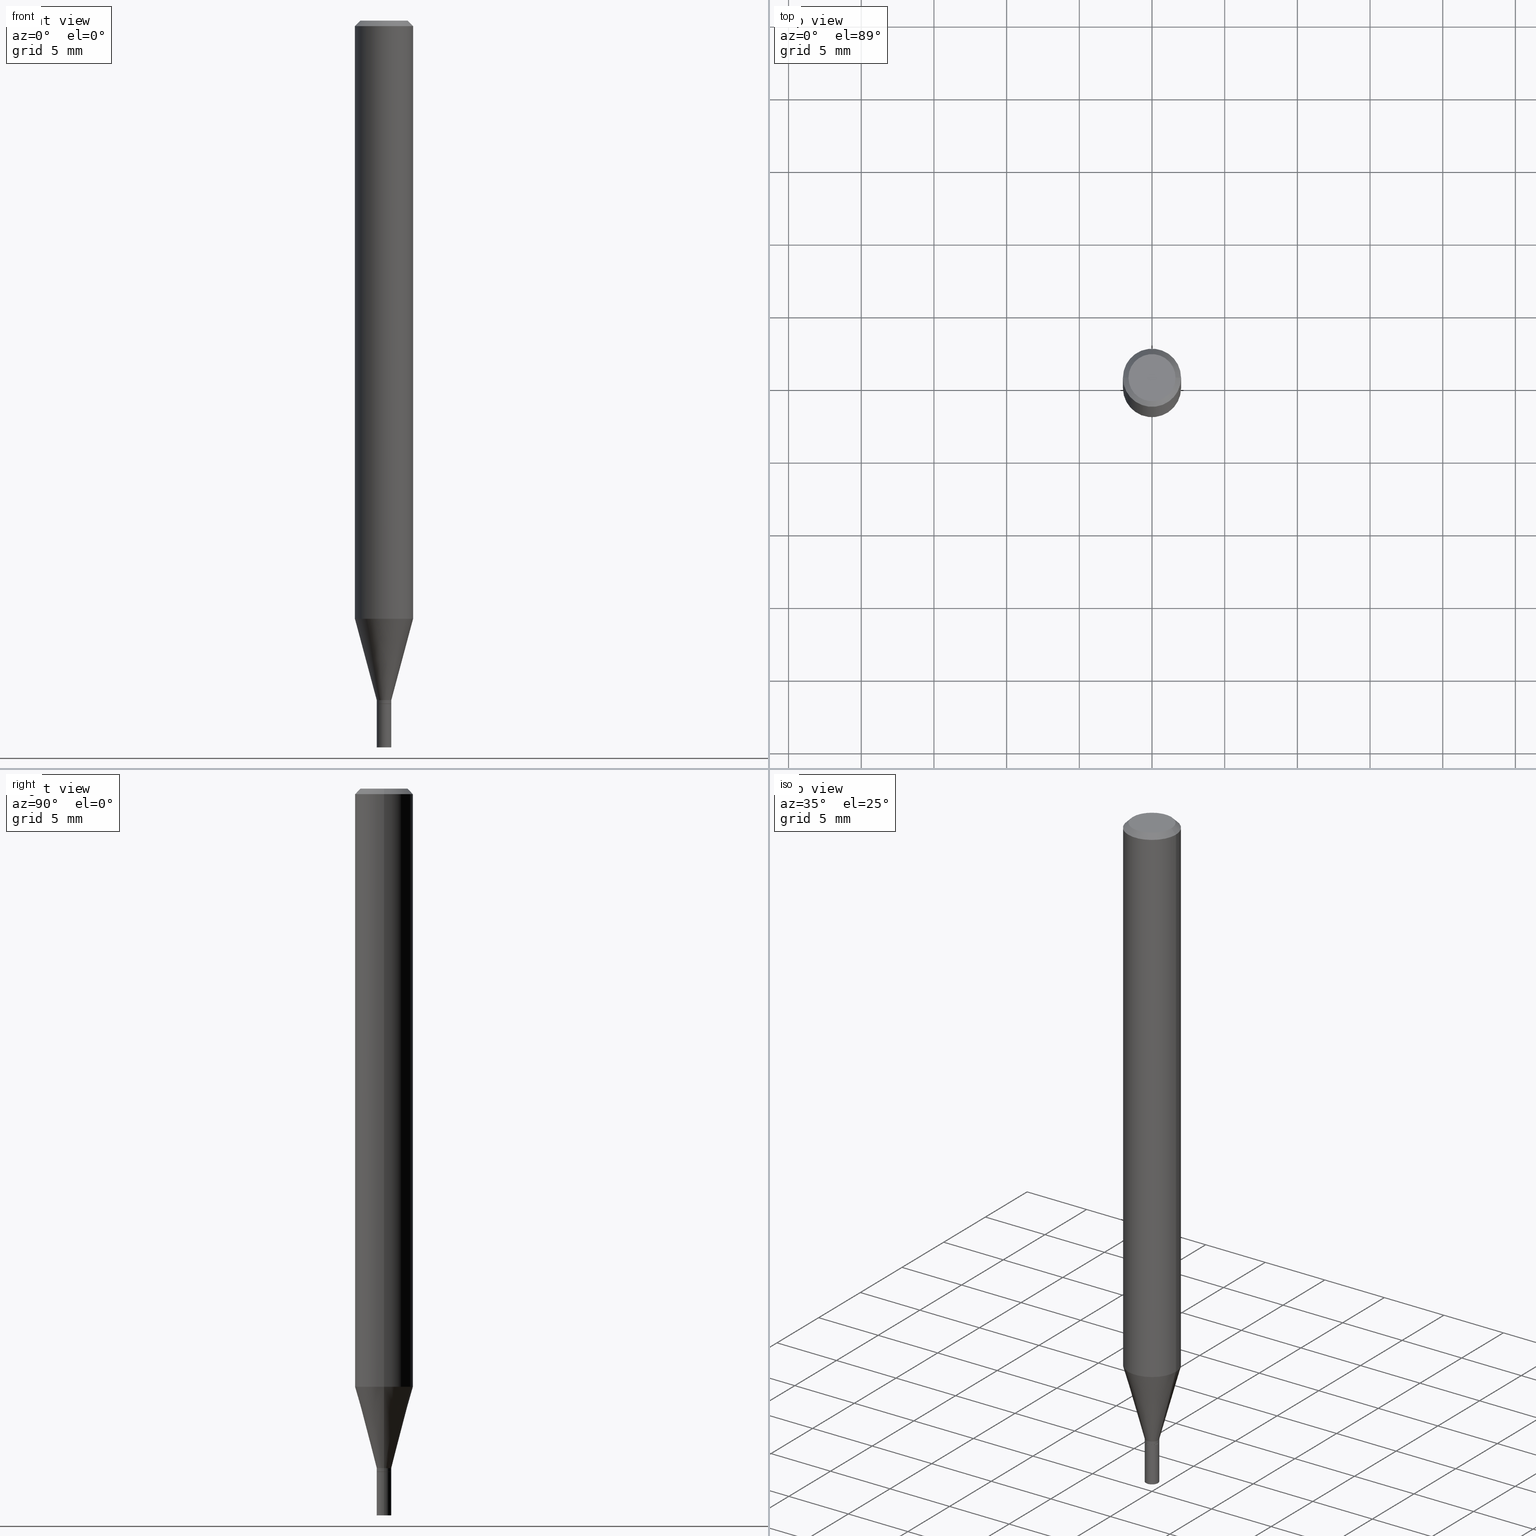
[diagram: canonical four-view strip — front | top / right | iso, engineering-drawing reading convention]
A machine part, canonical four-view strip (front | top / right | iso — engineering-drawing reading convention). The complete STEP part file that produces these views, byte-faithful:
ISO-10303-21;
HEADER;
FILE_DESCRIPTION (( 'STEP AP203' ),
    '1' );
FILE_NAME ('01883.STEP',
    '2024-03-20T02:24:21',
    ( '' ),
    ( '' ),
    'SwSTEP 2.0',
    'SolidWorks 2023',
    '' );
FILE_SCHEMA (( 'CONFIG_CONTROL_DESIGN' ));
ENDSEC;

DATA;
#1 = EDGE_LOOP ( 'NONE', ( #212, #92, #466, #40 ) ) ;
#2 = CALENDAR_DATE ( 2024, 19, 3 ) ;
#3 = APPLICATION_CONTEXT ( 'configuration controlled 3d designs of mechanical parts and assemblies' ) ;
#4 = VERTEX_POINT ( 'NONE', #363 ) ;
#5 = EDGE_CURVE ( 'NONE', #54, #67, #35, .T. ) ;
#6 = VECTOR ( 'NONE', #238, 39.37007874015748143 ) ;
#7 = VERTEX_POINT ( 'NONE', #188 ) ;
#8 = EDGE_CURVE ( 'NONE', #336, #284, #110, .T. ) ;
#9 = CARTESIAN_POINT ( 'NONE',  ( 0.01969999999999999876, -7.010545380263151710E-15, -1.968500000000000139 ) ) ;
#10 = FACE_OUTER_BOUND ( 'NONE', #365, .T. ) ;
#11 = LINE ( 'NONE', #449, #204 ) ;
#12 = EDGE_CURVE ( 'NONE', #297, #284, #59, .T. ) ;
#13 = CARTESIAN_POINT ( 'NONE',  ( 3.668203209277705088E-31, -5.237222008264718399E-17, -0.01499999999999999944 ) ) ;
#14 = CIRCLE ( 'NONE', #313, 0.01969999999999964835 ) ;
#15 = PRODUCT_DEFINITION_SHAPE ( 'NONE', 'NONE',  #302 ) ;
#16 = DIRECTION ( 'NONE',  ( -1.000000000000000000, 6.982962677686265922E-15, -4.876176775795935793E-29 ) ) ;
#17 = DIRECTION ( 'NONE',  ( -1.000000000000000000, 6.982962677686265922E-15, 0.000000000000000000 ) ) ;
#18 = APPROVAL ( #182, 'UNSPECIFIED' ) ;
#19 = LINE ( 'NONE', #160, #197 ) ;
#20 = PLANE ( 'NONE',  #305 ) ;
#21 = ADVANCED_FACE ( 'NONE', ( #270 ), #268, .T. ) ;
#22 = VECTOR ( 'NONE', #409, 39.37007874015748143 ) ;
#23 = CARTESIAN_POINT ( 'NONE',  ( 4.525095478964976833E-29, -6.460637069395356787E-15, -1.850400000000000045 ) ) ;
#24 = CARTESIAN_POINT ( 'NONE',  ( 4.813905344975441835E-29, -6.872981015512731707E-15, -1.968500000000000139 ) ) ;
#25 = CC_DESIGN_PERSON_AND_ORGANIZATION_ASSIGNMENT ( #432, #400, ( #302 ) ) ;
#26 = ORIENTED_EDGE ( 'NONE', *, *, #430, .T. ) ;
#27 = AXIS2_PLACEMENT_3D ( 'NONE', #303, #232, #442 ) ;
#28 = APPROVAL_ROLE ( '' ) ;
#29 = LINE ( 'NONE', #352, #6 ) ;
#30 = VERTEX_POINT ( 'NONE', #9 ) ;
#31 = DIRECTION ( 'NONE',  ( -2.445468806185136597E-29, 3.491481338843145583E-15, 1.000000000000000000 ) ) ;
#32 = EDGE_LOOP ( 'NONE', ( #216, #87, #259, #215 ) ) ;
#33 = CARTESIAN_POINT ( 'NONE',  ( -1.671175420108757483E-44, 2.385995592536438542E-30, 6.833762981895258137E-16 ) ) ;
#34 = CIRCLE ( 'NONE', #339, 0.06375000000000000111 ) ;
#35 = LINE ( 'NONE', #143, #233 ) ;
#36 = DATE_AND_TIME ( #193, #100 ) ;
#37 = CC_DESIGN_PERSON_AND_ORGANIZATION_ASSIGNMENT ( #286, #64, ( #396 ) ) ;
#38 = VERTEX_POINT ( 'NONE', #227 ) ;
#39 =( NAMED_UNIT ( * ) PLANE_ANGLE_UNIT ( ) SI_UNIT ( $, .RADIAN. ) );
#40 = ORIENTED_EDGE ( 'NONE', *, *, #163, .F. ) ;
#41 = ADVANCED_FACE ( 'NONE', ( #309 ), #341, .T. ) ;
#42 = AXIS2_PLACEMENT_3D ( 'NONE', #195, #157, #346 ) ;
#43 = AXIS2_PLACEMENT_3D ( 'NONE', #13, #377, #17 ) ;
#44 = DIRECTION ( 'NONE',  ( -2.445468806185136597E-29, 3.491481338843145583E-15, 1.000000000000000000 ) ) ;
#45 = CC_DESIGN_DATE_AND_TIME_ASSIGNMENT ( #355, #383, ( #315 ) ) ;
#46 = CARTESIAN_POINT ( 'NONE',  ( -0.01969999999999964835, -6.318914409781198341E-15, -1.849900000000000100 ) ) ;
#47 = CARTESIAN_POINT ( 'NONE',  ( 0.01969999999999999876, -6.598201434145776001E-15, -1.850400000000000045 ) ) ;
#48 = DIRECTION ( 'NONE',  ( 1.000000000000000000, -6.982962677686261977E-15, 0.000000000000000000 ) ) ;
#49 = DIRECTION ( 'NONE',  ( 1.000000000000000000, -6.982962677686278543E-15, 0.000000000000000000 ) ) ;
#50 = FACE_OUTER_BOUND ( 'NONE', #330, .T. ) ;
#51 = EDGE_CURVE ( 'NONE', #321, #284, #199, .T. ) ;
#52 = DIRECTION ( 'NONE',  ( 2.438088387897960049E-29, -3.491481338843145188E-15, -1.000000000000000000 ) ) ;
#53 = DIRECTION ( 'NONE',  ( -2.445468806185136597E-29, 3.491481338843145583E-15, 1.000000000000000000 ) ) ;
#54 = VERTEX_POINT ( 'NONE', #448 ) ;
#55 = CONICAL_SURFACE ( 'NONE', #191, 0.07875000000000000056, 0.7853981633974256304 ) ;
#56 = PERSON_AND_ORGANIZATION ( #404, #61 ) ;
#57 = APPROVAL ( #190, 'UNSPECIFIED' ) ;
#58 = EDGE_LOOP ( 'NONE', ( #98, #333, #141, #458 ) ) ;
#59 = CIRCLE ( 'NONE', #337, 0.07875000000000000056 ) ;
#60 = AXIS2_PLACEMENT_3D ( 'NONE', #205, #177, #327 ) ;
#61 = ORGANIZATION ( 'UNSPECIFIED', 'UNSPECIFIED', '' ) ;
#62 = ORIENTED_EDGE ( 'NONE', *, *, #8, .F. ) ;
#63 = LENGTH_MEASURE_WITH_UNIT ( LENGTH_MEASURE( 0.02539999999999999897 ), #99 );
#64 = PERSON_AND_ORGANIZATION_ROLE ( 'design_supplier' ) ;
#65 = ORIENTED_EDGE ( 'NONE', *, *, #353, .T. ) ;
#66 = PERSON_AND_ORGANIZATION_ROLE ( 'design_owner' ) ;
#67 = VERTEX_POINT ( 'NONE', #46 ) ;
#68 = CARTESIAN_POINT ( 'NONE',  ( 3.668203209277705088E-31, -5.237222008264718399E-17, -0.01499999999999999944 ) ) ;
#69 = LOCAL_TIME ( 22, 24, 21.00000000000000000, #142 ) ;
#70 = ORIENTED_EDGE ( 'NONE', *, *, #424, .F. ) ;
#71 = CARTESIAN_POINT ( 'NONE',  ( 0.01969999999999991896, -6.563635768891228653E-15, -1.840500000000000025 ) ) ;
#72 = ADVANCED_FACE ( 'NONE', ( #119 ), #311, .T. ) ;
#73 = ORIENTED_EDGE ( 'NONE', *, *, #427, .F. ) ;
#74 = DATE_TIME_ROLE ( 'creation_date' ) ;
#75 = CARTESIAN_POINT ( 'NONE',  ( 0.000000000000000000, 0.000000000000000000, 0.000000000000000000 ) ) ;
#76 = CALENDAR_DATE ( 2024, 19, 3 ) ;
#77 = DIRECTION ( 'NONE',  ( 1.000000000000000000, -6.982962677686252511E-15, 0.000000000000000000 ) ) ;
#78 = DIRECTION ( 'NONE',  ( -2.445468806185136597E-29, 3.491481338843145583E-15, 1.000000000000000000 ) ) ;
#79 = LINE ( 'NONE', #230, #405 ) ;
#80 = DIRECTION ( 'NONE',  ( 1.000000000000000000, -6.982962677686258033E-15, 0.000000000000000000 ) ) ;
#81 = VECTOR ( 'NONE', #218, 39.37007874015748143 ) ;
#82 = DIRECTION ( 'NONE',  ( 1.000000000000000000, -6.982962677686265922E-15, 4.876176775795935232E-29 ) ) ;
#83 = CONICAL_SURFACE ( 'NONE', #343, 0.01919999999999999832, 0.7853981633969253640 ) ;
#84 = AXIS2_PLACEMENT_3D ( 'NONE', #33, #463, #139 ) ;
#85 = LINE ( 'NONE', #447, #90 ) ;
#86 = CARTESIAN_POINT ( 'NONE',  ( 0.000000000000000000, 0.000000000000000000, 0.000000000000000000 ) ) ;
#87 = ORIENTED_EDGE ( 'NONE', *, *, #394, .T. ) ;
#88 = CYLINDRICAL_SURFACE ( 'NONE', #210, 0.07875000000000000056 ) ;
#89 = CLOSED_SHELL ( 'NONE', ( #41, #121, #174, #384, #235, #144, #358, #107, #376, #159, #221, #21 ) ) ;
#90 = VECTOR ( 'NONE', #263, 39.37007874015748143 ) ;
#91 = LOCAL_TIME ( 22, 24, 21.00000000000000000, #262 ) ;
#92 = ORIENTED_EDGE ( 'NONE', *, *, #269, .T. ) ;
#93 = DIMENSIONAL_EXPONENTS ( 1.000000000000000000, 0.000000000000000000, 0.000000000000000000, 0.000000000000000000, 0.000000000000000000, 0.000000000000000000, 0.000000000000000000 ) ;
#94 = ORIENTED_EDGE ( 'NONE', *, *, #12, .F. ) ;
#95 = FACE_OUTER_BOUND ( 'NONE', #254, .T. ) ;
#96 = CARTESIAN_POINT ( 'NONE',  ( 4.523872744561884592E-29, -6.458891328725935284E-15, -1.849900000000000100 ) ) ;
#97 = PERSON_AND_ORGANIZATION ( #404, #61 ) ;
#98 = ORIENTED_EDGE ( 'NONE', *, *, #136, .T. ) ;
#99 =( LENGTH_UNIT ( ) NAMED_UNIT ( * ) SI_UNIT ( $, .METRE. ) );
#100 = LOCAL_TIME ( 22, 24, 21.00000000000000000, #172 ) ;
#101 = ORIENTED_EDGE ( 'NONE', *, *, #427, .T. ) ;
#102 = ORIENTED_EDGE ( 'NONE', *, *, #350, .F. ) ;
#103 = EDGE_CURVE ( 'NONE', #173, #243, #164, .T. ) ;
#104 = DIRECTION ( 'NONE',  ( 0.000000000000000000, 0.000000000000000000, 1.000000000000000000 ) ) ;
#105 = ORIENTED_EDGE ( 'NONE', *, *, #455, .F. ) ;
#106 = COORDINATED_UNIVERSAL_TIME_OFFSET ( 5, 0, .BEHIND. ) ;
#107 = ADVANCED_FACE ( 'NONE', ( #50 ), #55, .T. ) ;
#108 = AXIS2_PLACEMENT_3D ( 'NONE', #279, #460, #316 ) ;
#109 = ORIENTED_EDGE ( 'NONE', *, *, #310, .F. ) ;
#110 = LINE ( 'NONE', #294, #81 ) ;
#111 = APPROVAL_ROLE ( '' ) ;
#112 = DIRECTION ( 'NONE',  ( 1.000000000000000000, -6.982962677686255667E-15, 0.000000000000000000 ) ) ;
#113 = CARTESIAN_POINT ( 'NONE',  ( -0.06375000000000000111, 4.713499807438241074E-16, 6.833762981895226583E-16 ) ) ;
#114 = VECTOR ( 'NONE', #201, 39.37007874015748143 ) ;
#115 = DIRECTION ( 'NONE',  ( -2.438088387897960049E-29, 3.491481338843145188E-15, 1.000000000000000000 ) ) ;
#116 = PRODUCT ( '01883', '01883', '', ( #255 ) ) ;
#117 = CARTESIAN_POINT ( 'NONE',  ( 0.07875000000000000056, -6.022805309504406221E-16, -0.01499999999999999944 ) ) ;
#118 = DIRECTION ( 'NONE',  ( 1.000000000000000000, -6.982962677686267499E-15, 4.876176775795935793E-29 ) ) ;
#119 = FACE_OUTER_BOUND ( 'NONE', #1, .T. ) ;
#120 = DIRECTION ( 'NONE',  ( -0.7071067811865314745, 2.468850131082088639E-15, -0.7071067811865635599 ) ) ;
#121 = ADVANCED_FACE ( 'NONE', ( #446 ), #138, .T. ) ;
#122 = FACE_OUTER_BOUND ( 'NONE', #181, .T. ) ;
#123 = AXIS2_PLACEMENT_3D ( 'NONE', #266, #158, #49 ) ;
#124 = AXIS2_PLACEMENT_3D ( 'NONE', #220, #285, #388 ) ;
#125 = DIRECTION ( 'NONE',  ( 1.000000000000000000, -6.982962677686255667E-15, 0.000000000000000000 ) ) ;
#126 = ADVANCED_FACE ( 'NONE', ( #122 ), #20, .F. ) ;
#127 = VERTEX_POINT ( 'NONE', #155 ) ;
#128 = DIRECTION ( 'NONE',  ( 0.7071067811861776464, -2.468850131078383359E-15, 0.7071067811869171660 ) ) ;
#129 = EDGE_CURVE ( 'NONE', #30, #127, #225, .T. ) ;
#130 = ORIENTED_EDGE ( 'NONE', *, *, #295, .T. ) ;
#131 = AXIS2_PLACEMENT_3D ( 'NONE', #443, #115, #410 ) ;
#132 = PERSON_AND_ORGANIZATION_ROLE ( 'classification_officer' ) ;
#133 = ORIENTED_EDGE ( 'NONE', *, *, #163, .T. ) ;
#134 = ORIENTED_EDGE ( 'NONE', *, *, #136, .F. ) ;
#135 = DIRECTION ( 'NONE',  ( 1.000000000000000000, -6.982962677686265922E-15, 4.876176775795935232E-29 ) ) ;
#136 = EDGE_CURVE ( 'NONE', #436, #7, #386, .T. ) ;
#137 = VERTEX_POINT ( 'NONE', #113 ) ;
#138 = CONICAL_SURFACE ( 'NONE', #444, 0.01919999999999999832, 0.7853981633969253640 ) ;
#139 = DIRECTION ( 'NONE',  ( 1.000000000000000000, -6.982962677686265922E-15, 4.947888571036530338E-29 ) ) ;
#140 =( GEOMETRIC_REPRESENTATION_CONTEXT ( 3 ) GLOBAL_UNCERTAINTY_ASSIGNED_CONTEXT ( ( #219 ) ) GLOBAL_UNIT_ASSIGNED_CONTEXT ( ( #299, #39, #253 ) ) REPRESENTATION_CONTEXT ( 'NONE', 'WORKASPACE' ) );
#141 = ORIENTED_EDGE ( 'NONE', *, *, #295, .F. ) ;
#142 = COORDINATED_UNIVERSAL_TIME_OFFSET ( 5, 0, .BEHIND. ) ;
#143 = CARTESIAN_POINT ( 'NONE',  ( -0.01919999999999999832, -6.324212864129418377E-15, -1.850400000000000267 ) ) ;
#144 = ADVANCED_FACE ( 'NONE', ( #151 ), #320, .T. ) ;
#145 = DATE_AND_TIME ( #2, #273 ) ;
#146 = ORIENTED_EDGE ( 'NONE', *, *, #368, .T. ) ;
#147 = DIRECTION ( 'NONE',  ( 1.000000000000000000, -6.982962677686265922E-15, 4.947888571036530338E-29 ) ) ;
#148 = CC_DESIGN_PERSON_AND_ORGANIZATION_ASSIGNMENT ( #97, #211, ( #396 ) ) ;
#149 = VECTOR ( 'NONE', #128, 39.37007874015748854 ) ;
#150 = ORIENTED_EDGE ( 'NONE', *, *, #416, .F. ) ;
#151 = FACE_OUTER_BOUND ( 'NONE', #32, .T. ) ;
#152 = CARTESIAN_POINT ( 'NONE',  ( 0.07875000000000000056, -5.499083108677934443E-16, 3.839989210939299016E-30 ) ) ;
#153 = DIRECTION ( 'NONE',  ( -2.445468806185136877E-29, 3.491481338843145188E-15, 1.000000000000000000 ) ) ;
#154 = CIRCLE ( 'NONE', #265, 0.07875000000000000056 ) ;
#155 = CARTESIAN_POINT ( 'NONE',  ( -0.01969999999999999876, -6.526832123509304544E-15, -1.968500000000000139 ) ) ;
#156 = APPROVAL ( #357, 'UNSPECIFIED' ) ;
#157 = DIRECTION ( 'NONE',  ( -2.445468806185136597E-29, 3.491481338843145583E-15, 1.000000000000000000 ) ) ;
#158 = DIRECTION ( 'NONE',  ( -2.445468806185136597E-29, 3.491481338843145583E-15, 1.000000000000000000 ) ) ;
#159 = ADVANCED_FACE ( 'NONE', ( #10 ), #304, .F. ) ;
#160 = CARTESIAN_POINT ( 'NONE',  ( -0.07875000000000000056, 4.975360907851462665E-16, -0.01499999999999999944 ) ) ;
#161 = DIRECTION ( 'NONE',  ( 1.000000000000000000, -6.982962677686267499E-15, 4.876176775795935793E-29 ) ) ;
#162 = ADVANCED_BREP_SHAPE_REPRESENTATION ( '01883', ( #167, #332, #289 ), #140 ) ;
#163 = EDGE_CURVE ( 'NONE', #30, #173, #79, .T. ) ;
#164 = CIRCLE ( 'NONE', #123, 0.01969999999999999876 ) ;
#165 = APPROVAL_PERSON_ORGANIZATION ( #223, #57, #111 ) ;
#166 = DIRECTION ( 'NONE',  ( 1.000000000000000000, -6.982962677686265922E-15, 4.876176775795935232E-29 ) ) ;
#167 = MANIFOLD_SOLID_BREP ( 'Body-Move/Copy2[1]', #433 ) ;
#168 = CYLINDRICAL_SURFACE ( 'NONE', #170, 0.07875000000000000056 ) ;
#169 = ORIENTED_EDGE ( 'NONE', *, *, #387, .F. ) ;
#170 = AXIS2_PLACEMENT_3D ( 'NONE', #86, #277, #166 ) ;
#171 = ORIENTED_EDGE ( 'NONE', *, *, #213, .F. ) ;
#172 = COORDINATED_UNIVERSAL_TIME_OFFSET ( 5, 0, .BEHIND. ) ;
#173 = VERTEX_POINT ( 'NONE', #47 ) ;
#174 = ADVANCED_FACE ( 'NONE', ( #342 ), #435, .T. ) ;
#175 = DIRECTION ( 'NONE',  ( 1.000000000000000000, -6.982962677686265922E-15, 4.876176775795935232E-29 ) ) ;
#176 = ORIENTED_EDGE ( 'NONE', *, *, #189, .T. ) ;
#177 = DIRECTION ( 'NONE',  ( -2.445468806185136597E-29, 3.491481338843145583E-15, 1.000000000000000000 ) ) ;
#178 = ORIENTED_EDGE ( 'NONE', *, *, #424, .T. ) ;
#179 = AXIS2_PLACEMENT_3D ( 'NONE', #274, #208, #135 ) ;
#180 = CARTESIAN_POINT ( 'NONE',  ( -0.01969999999999978366, 1.399769189447381994E-16, -9.690302127802057404E-31 ) ) ;
#181 = EDGE_LOOP ( 'NONE', ( #390, #349 ) ) ;
#182 = APPROVAL_STATUS ( 'not_yet_approved' ) ;
#183 = APPROVAL_DATE_TIME ( #36, #156 ) ;
#184 = CARTESIAN_POINT ( 'NONE',  ( -0.07875000000000000056, 5.595524044110789003E-16, -3.873661383575737792E-30 ) ) ;
#185 = EDGE_LOOP ( 'NONE', ( #178, #324, #171, #169 ) ) ;
#186 = EDGE_CURVE ( 'NONE', #4, #297, #245, .T. ) ;
#187 = DIRECTION ( 'NONE',  ( 1.000000000000000000, 0.000000000000000000, 0.000000000000000000 ) ) ;
#188 = CARTESIAN_POINT ( 'NONE',  ( -0.01969999999999991896, -5.691584603187028865E-15, -1.840500000000000025 ) ) ;
#189 = EDGE_CURVE ( 'NONE', #67, #7, #317, .T. ) ;
#190 = APPROVAL_STATUS ( 'not_yet_approved' ) ;
#191 = AXIS2_PLACEMENT_3D ( 'NONE', #451, #236, #308 ) ;
#192 = DIRECTION ( 'NONE',  ( -2.445468806185136597E-29, 3.491481338843145583E-15, 1.000000000000000000 ) ) ;
#193 = CALENDAR_DATE ( 2024, 19, 3 ) ;
#194 = CARTESIAN_POINT ( 'NONE',  ( 4.500885337783744072E-29, -6.426071404140809439E-15, -1.840500000000000025 ) ) ;
#195 = CARTESIAN_POINT ( 'NONE',  ( 4.500885337783744072E-29, -6.426071404140809439E-15, -1.840500000000000025 ) ) ;
#196 = CARTESIAN_POINT ( 'NONE',  ( -0.07875000000000000056, -2.294947268424778136E-15, -0.01499999999999999944 ) ) ;
#197 = VECTOR ( 'NONE', #120, 39.37007874015748143 ) ;
#198 = CIRCLE ( 'NONE', #84, 0.06375000000000000111 ) ;
#199 = LINE ( 'NONE', #152, #114 ) ;
#200 = CARTESIAN_POINT ( 'NONE',  ( 4.525095478964977394E-29, -6.460637069395357576E-15, -1.850400000000000267 ) ) ;
#201 = DIRECTION ( 'NONE',  ( -2.445468806185136877E-29, 3.491481338843145188E-15, 1.000000000000000000 ) ) ;
#202 = DIRECTION ( 'NONE',  ( 0.2588190451025214611, 1.565188264969620982E-15, 0.9659258262890679791 ) ) ;
#203 = ORIENTED_EDGE ( 'NONE', *, *, #103, .T. ) ;
#204 = VECTOR ( 'NONE', #153, 39.37007874015748143 ) ;
#205 = CARTESIAN_POINT ( 'NONE',  ( 4.500885337783744072E-29, -6.426071404140809439E-15, -1.840500000000000025 ) ) ;
#206 = ORIENTED_EDGE ( 'NONE', *, *, #189, .F. ) ;
#207 = ADVANCED_FACE ( 'NONE', ( #275 ), #231, .F. ) ;
#208 = DIRECTION ( 'NONE',  ( -2.445468806185136597E-29, 3.491481338843145583E-15, 1.000000000000000000 ) ) ;
#209 = PERSON_AND_ORGANIZATION ( #404, #61 ) ;
#210 = AXIS2_PLACEMENT_3D ( 'NONE', #382, #248, #175 ) ;
#211 = PERSON_AND_ORGANIZATION_ROLE ( 'creator' ) ;
#212 = ORIENTED_EDGE ( 'NONE', *, *, #129, .T. ) ;
#213 = EDGE_CURVE ( 'NONE', #38, #67, #362, .T. ) ;
#214 = CARTESIAN_POINT ( 'NONE',  ( 0.000000000000000000, 0.000000000000000000, 0.000000000000000000 ) ) ;
#215 = ORIENTED_EDGE ( 'NONE', *, *, #368, .F. ) ;
#216 = ORIENTED_EDGE ( 'NONE', *, *, #252, .F. ) ;
#217 = AXIS2_PLACEMENT_3D ( 'NONE', #24, #239, #322 ) ;
#218 = DIRECTION ( 'NONE',  ( 0.7071067811865314745, -7.319954787623202403E-15, -0.7071067811865635599 ) ) ;
#219 = UNCERTAINTY_MEASURE_WITH_UNIT (LENGTH_MEASURE( 1.000000000000000082E-05 ), #299, 'distance_accuracy_value', 'NONE');
#220 = CARTESIAN_POINT ( 'NONE',  ( 4.525095478964977394E-29, -6.460637069395357576E-15, -1.850400000000000267 ) ) ;
#221 = ADVANCED_FACE ( 'NONE', ( #229 ), #83, .T. ) ;
#222 = ORIENTED_EDGE ( 'NONE', *, *, #8, .T. ) ;
#223 = PERSON_AND_ORGANIZATION ( #404, #61 ) ;
#224 = DIRECTION ( 'NONE',  ( -2.438088387897960049E-29, 3.491481338843145188E-15, 1.000000000000000000 ) ) ;
#225 = CIRCLE ( 'NONE', #287, 0.01969999999999999876 ) ;
#226 = CARTESIAN_POINT ( 'NONE',  ( 4.523872744561884592E-29, -6.458891328725935284E-15, -1.849900000000000100 ) ) ;
#227 = CARTESIAN_POINT ( 'NONE',  ( 0.01969999999999964835, -6.596455693476352131E-15, -1.849900000000000100 ) ) ;
#228 = CC_DESIGN_PERSON_AND_ORGANIZATION_ASSIGNMENT ( #209, #132, ( #315 ) ) ;
#229 = FACE_OUTER_BOUND ( 'NONE', #278, .T. ) ;
#230 = CARTESIAN_POINT ( 'NONE',  ( 0.01969999999999999876, -1.375643647504194363E-16, 9.606068248317991466E-31 ) ) ;
#231 = PLANE ( 'NONE',  #240 ) ;
#232 = DIRECTION ( 'NONE',  ( -2.445468806185136597E-29, 3.491481338843145583E-15, 1.000000000000000000 ) ) ;
#233 = VECTOR ( 'NONE', #326, 39.37007874015748854 ) ;
#234 = AXIS2_PLACEMENT_3D ( 'NONE', #226, #78, #112 ) ;
#235 = ADVANCED_FACE ( 'NONE', ( #373 ), #378, .T. ) ;
#236 = DIRECTION ( 'NONE',  ( 2.445468806185136597E-29, -3.491481338843145583E-15, -1.000000000000000000 ) ) ;
#237 = FACE_OUTER_BOUND ( 'NONE', #422, .T. ) ;
#238 = DIRECTION ( 'NONE',  ( -2.445468806185136877E-29, 3.491481338843145188E-15, 1.000000000000000000 ) ) ;
#239 = DIRECTION ( 'NONE',  ( -2.445468806185136597E-29, 3.491481338843145583E-15, 1.000000000000000000 ) ) ;
#240 = AXIS2_PLACEMENT_3D ( 'NONE', #312, #52, #16 ) ;
#241 = CC_DESIGN_APPROVAL ( #18, ( #302 ) ) ;
#242 = CC_DESIGN_PERSON_AND_ORGANIZATION_ASSIGNMENT ( #292, #66, ( #116 ) ) ;
#243 = VERTEX_POINT ( 'NONE', #407 ) ;
#244 = ORIENTED_EDGE ( 'NONE', *, *, #350, .T. ) ;
#245 = LINE ( 'NONE', #184, #22 ) ;
#246 = ORIENTED_EDGE ( 'NONE', *, *, #389, .T. ) ;
#247 = APPLICATION_CONTEXT ( 'configuration controlled 3d designs of mechanical parts and assemblies' ) ;
#248 = DIRECTION ( 'NONE',  ( -2.445468806185136597E-29, 3.491481338843145583E-15, 1.000000000000000000 ) ) ;
#249 = VECTOR ( 'NONE', #202, 39.37007874015748143 ) ;
#250 = AXIS2_PLACEMENT_3D ( 'NONE', #75, #379, #161 ) ;
#251 = ORIENTED_EDGE ( 'NONE', *, *, #51, .F. ) ;
#252 = EDGE_CURVE ( 'NONE', #7, #4, #85, .T. ) ;
#253 =( NAMED_UNIT ( * ) SI_UNIT ( $, .STERADIAN. ) SOLID_ANGLE_UNIT ( ) );
#254 = EDGE_LOOP ( 'NONE', ( #130, #454, #105, #251 ) ) ;
#255 = MECHANICAL_CONTEXT ( 'NONE', #247, 'mechanical' ) ;
#256 = ORIENTED_EDGE ( 'NONE', *, *, #387, .T. ) ;
#257 = CIRCLE ( 'NONE', #108, 0.07875000000000000056 ) ;
#258 = DATE_AND_TIME ( #325, #307 ) ;
#259 = ORIENTED_EDGE ( 'NONE', *, *, #271, .T. ) ;
#260 = COORDINATED_UNIVERSAL_TIME_OFFSET ( 5, 0, .BEHIND. ) ;
#261 = CARTESIAN_POINT ( 'NONE',  ( 3.668203209277705088E-31, -5.237222008264718399E-17, -0.01499999999999999944 ) ) ;
#262 = COORDINATED_UNIVERSAL_TIME_OFFSET ( 5, 0, .BEHIND. ) ;
#263 = DIRECTION ( 'NONE',  ( -0.2588190451025214611, 5.211531920934550253E-15, 0.9659258262890679791 ) ) ;
#264 = DIRECTION ( 'NONE',  ( -2.445468806185136597E-29, 3.491481338843145583E-15, 1.000000000000000000 ) ) ;
#265 = AXIS2_PLACEMENT_3D ( 'NONE', #402, #267, #48 ) ;
#266 = CARTESIAN_POINT ( 'NONE',  ( 4.525095478964976833E-29, -6.460637069395356787E-15, -1.850400000000000045 ) ) ;
#267 = DIRECTION ( 'NONE',  ( -2.445468806185136597E-29, 3.491481338843145583E-15, 1.000000000000000000 ) ) ;
#268 = CYLINDRICAL_SURFACE ( 'NONE', #371, 0.01969999999999978366 ) ;
#269 = EDGE_CURVE ( 'NONE', #127, #243, #11, .T. ) ;
#270 = FACE_OUTER_BOUND ( 'NONE', #276, .T. ) ;
#271 = EDGE_CURVE ( 'NONE', #436, #321, #306, .T. ) ;
#272 = CIRCLE ( 'NONE', #60, 0.01969999999999991896 ) ;
#273 = LOCAL_TIME ( 22, 24, 21.00000000000000000, #260 ) ;
#274 = CARTESIAN_POINT ( 'NONE',  ( 0.000000000000000000, 0.000000000000000000, 0.000000000000000000 ) ) ;
#275 = FACE_OUTER_BOUND ( 'NONE', #301, .T. ) ;
#276 = EDGE_LOOP ( 'NONE', ( #206, #244, #246, #395 ) ) ;
#277 = DIRECTION ( 'NONE',  ( -2.445468806185136597E-29, 3.491481338843145583E-15, 1.000000000000000000 ) ) ;
#278 = EDGE_LOOP ( 'NONE', ( #431, #429, #256, #102 ) ) ;
#279 = CARTESIAN_POINT ( 'NONE',  ( 3.961958790944637830E-29, -5.656627125589065612E-15, -1.620122399813058056 ) ) ;
#280 = CIRCLE ( 'NONE', #414, 0.01969999999999999876 ) ;
#281 = APPROVAL_PERSON_ORGANIZATION ( #56, #156, #28 ) ;
#282 = EDGE_LOOP ( 'NONE', ( #328, #222, #367, #109 ) ) ;
#283 = DIRECTION ( 'NONE',  ( 2.438088387897960049E-29, -3.491481338843145188E-15, -1.000000000000000000 ) ) ;
#284 = VERTEX_POINT ( 'NONE', #117 ) ;
#285 = DIRECTION ( 'NONE',  ( -2.445468806185136597E-29, 3.491481338843145583E-15, 1.000000000000000000 ) ) ;
#286 = PERSON_AND_ORGANIZATION ( #404, #61 ) ;
#287 = AXIS2_PLACEMENT_3D ( 'NONE', #345, #44, #411 ) ;
#288 = DIRECTION ( 'NONE',  ( -2.445468806185136597E-29, 3.491481338843145583E-15, 1.000000000000000000 ) ) ;
#289 = AXIS2_PLACEMENT_3D ( 'NONE', #214, #104, #187 ) ;
#290 = DIRECTION ( 'NONE',  ( -2.445468806185136597E-29, 3.491481338843145583E-15, 1.000000000000000000 ) ) ;
#291 = ORIENTED_EDGE ( 'NONE', *, *, #186, .F. ) ;
#292 = PERSON_AND_ORGANIZATION ( #404, #61 ) ;
#293 = CALENDAR_DATE ( 2024, 19, 3 ) ;
#294 = CARTESIAN_POINT ( 'NONE',  ( 0.07875000000000000056, -5.926364374071552647E-16, -0.01499999999999999944 ) ) ;
#295 = EDGE_CURVE ( 'NONE', #321, #4, #154, .T. ) ;
#296 = APPROVAL_DATE_TIME ( #145, #18 ) ;
#297 = VERTEX_POINT ( 'NONE', #196 ) ;
#298 = AXIS2_PLACEMENT_3D ( 'NONE', #456, #283, #423 ) ;
#299 =( CONVERSION_BASED_UNIT ( 'INCH', #63 ) LENGTH_UNIT ( ) NAMED_UNIT ( #93 ) );
#300 = APPROVAL_PERSON_ORGANIZATION ( #369, #18, #331 ) ;
#301 = EDGE_LOOP ( 'NONE', ( #203, #65 ) ) ;
#302 = PRODUCT_DEFINITION ( 'UNKNOWN', '', #396, #437 ) ;
#303 = CARTESIAN_POINT ( 'NONE',  ( 4.500885337783744072E-29, -6.426071404140809439E-15, -1.840500000000000025 ) ) ;
#304 = PLANE ( 'NONE',  #131 ) ;
#305 = AXIS2_PLACEMENT_3D ( 'NONE', #401, #224, #370 ) ;
#306 = LINE ( 'NONE', #445, #249 ) ;
#307 = LOCAL_TIME ( 22, 24, 21.00000000000000000, #106 ) ;
#308 = DIRECTION ( 'NONE',  ( -1.000000000000000000, 6.982962677686265922E-15, 0.000000000000000000 ) ) ;
#309 = FACE_OUTER_BOUND ( 'NONE', #439, .T. ) ;
#310 = EDGE_CURVE ( 'NONE', #137, #297, #19, .T. ) ;
#311 = CYLINDRICAL_SURFACE ( 'NONE', #351, 0.01969999999999999876 ) ;
#312 = CARTESIAN_POINT ( 'NONE',  ( 1.375643647504646725E-16, 0.01969999999999353518, -1.850400000000000045 ) ) ;
#313 = AXIS2_PLACEMENT_3D ( 'NONE', #96, #53, #125 ) ;
#314 = AXIS2_PLACEMENT_3D ( 'NONE', #68, #397, #366 ) ;
#315 = SECURITY_CLASSIFICATION ( '', '', #391 ) ;
#316 = DIRECTION ( 'NONE',  ( 1.000000000000000000, -6.982962677686261977E-15, 0.000000000000000000 ) ) ;
#317 = LINE ( 'NONE', #180, #464 ) ;
#318 = ADVANCED_FACE ( 'NONE', ( #237 ), #348, .T. ) ;
#319 = DIRECTION ( 'NONE',  ( 1.000000000000000000, -6.982962677686278543E-15, 0.000000000000000000 ) ) ;
#320 = CONICAL_SURFACE ( 'NONE', #27, 0.01969999999999991896, 0.2617993877991501850 ) ;
#321 = VERTEX_POINT ( 'NONE', #356 ) ;
#322 = DIRECTION ( 'NONE',  ( 1.000000000000000000, -6.982962677686278543E-15, 0.000000000000000000 ) ) ;
#323 = APPROVAL_DATE_TIME ( #434, #57 ) ;
#324 = ORIENTED_EDGE ( 'NONE', *, *, #5, .T. ) ;
#325 = CALENDAR_DATE ( 2024, 19, 3 ) ;
#326 = DIRECTION ( 'NONE',  ( -0.7071067811861776464, 7.493145998869016252E-15, 0.7071067811869171660 ) ) ;
#327 = DIRECTION ( 'NONE',  ( 1.000000000000000000, -6.982962677686258033E-15, 0.000000000000000000 ) ) ;
#328 = ORIENTED_EDGE ( 'NONE', *, *, #430, .F. ) ;
#329 = APPLICATION_PROTOCOL_DEFINITION ( 'international standard', 'config_control_design', 1994, #247 ) ;
#330 = EDGE_LOOP ( 'NONE', ( #62, #73, #462, #399 ) ) ;
#331 = APPROVAL_ROLE ( '' ) ;
#332 = MANIFOLD_SOLID_BREP ( 'Body-Move/Copy2[2]', #89 ) ;
#333 = ORIENTED_EDGE ( 'NONE', *, *, #252, .T. ) ;
#334 = EDGE_CURVE ( 'NONE', #127, #30, #418, .T. ) ;
#335 = CARTESIAN_POINT ( 'NONE',  ( 4.525095478964977394E-29, -6.460637069395357576E-15, -1.850400000000000267 ) ) ;
#336 = VERTEX_POINT ( 'NONE', #415 ) ;
#337 = AXIS2_PLACEMENT_3D ( 'NONE', #261, #288, #428 ) ;
#338 = CIRCLE ( 'NONE', #124, 0.01919999999999999832 ) ;
#339 = AXIS2_PLACEMENT_3D ( 'NONE', #425, #31, #147 ) ;
#340 = CARTESIAN_POINT ( 'NONE',  ( 0.000000000000000000, 0.000000000000000000, 0.000000000000000000 ) ) ;
#341 = CYLINDRICAL_SURFACE ( 'NONE', #250, 0.01969999999999978366 ) ;
#342 = FACE_OUTER_BOUND ( 'NONE', #282, .T. ) ;
#343 = AXIS2_PLACEMENT_3D ( 'NONE', #200, #412, #375 ) ;
#344 = CIRCLE ( 'NONE', #314, 0.07875000000000000056 ) ;
#345 = CARTESIAN_POINT ( 'NONE',  ( 4.813905344975441835E-29, -6.872981015512731707E-15, -1.968500000000000139 ) ) ;
#346 = DIRECTION ( 'NONE',  ( 1.000000000000000000, -6.982962677686258033E-15, 0.000000000000000000 ) ) ;
#347 = CARTESIAN_POINT ( 'NONE',  ( 4.525095478964977394E-29, -6.460637069395357576E-15, -1.850400000000000267 ) ) ;
#348 = CYLINDRICAL_SURFACE ( 'NONE', #179, 0.01969999999999999876 ) ;
#349 = ORIENTED_EDGE ( 'NONE', *, *, #334, .F. ) ;
#350 = EDGE_CURVE ( 'NONE', #67, #38, #14, .T. ) ;
#351 = AXIS2_PLACEMENT_3D ( 'NONE', #413, #403, #82 ) ;
#352 = CARTESIAN_POINT ( 'NONE',  ( 0.01969999999999978366, -1.375643647504179571E-16, 9.606068248317888120E-31 ) ) ;
#353 = EDGE_CURVE ( 'NONE', #243, #173, #280, .T. ) ;
#354 = DIRECTION ( 'NONE',  ( -2.445468806185136597E-29, 3.491481338843145583E-15, 1.000000000000000000 ) ) ;
#355 = DATE_AND_TIME ( #293, #69 ) ;
#356 = CARTESIAN_POINT ( 'NONE',  ( 0.07874999999999997280, -6.206535436456859747E-15, -1.620122399813058056 ) ) ;
#357 = APPROVAL_STATUS ( 'not_yet_approved' ) ;
#358 = ADVANCED_FACE ( 'NONE', ( #380 ), #168, .T. ) ;
#359 = ORIENTED_EDGE ( 'NONE', *, *, #389, .F. ) ;
#360 = ORIENTED_EDGE ( 'NONE', *, *, #353, .F. ) ;
#361 = DIRECTION ( 'NONE',  ( 1.000000000000000000, -6.982962677686252511E-15, 0.000000000000000000 ) ) ;
#362 = CIRCLE ( 'NONE', #234, 0.01969999999999964835 ) ;
#363 = CARTESIAN_POINT ( 'NONE',  ( -0.07874999999999997280, -5.097074721177987599E-15, -1.620122399813058056 ) ) ;
#364 = AXIS2_PLACEMENT_3D ( 'NONE', #335, #290, #361 ) ;
#365 = EDGE_LOOP ( 'NONE', ( #70, #150 ) ) ;
#366 = DIRECTION ( 'NONE',  ( 1.000000000000000000, -6.982962677686265922E-15, 0.000000000000000000 ) ) ;
#367 = ORIENTED_EDGE ( 'NONE', *, *, #455, .T. ) ;
#368 = EDGE_CURVE ( 'NONE', #4, #321, #257, .T. ) ;
#369 = PERSON_AND_ORGANIZATION ( #404, #61 ) ;
#370 = DIRECTION ( 'NONE',  ( 1.000000000000000000, -6.982962677686265922E-15, 4.876176775795935793E-29 ) ) ;
#371 = AXIS2_PLACEMENT_3D ( 'NONE', #340, #264, #118 ) ;
#372 = DIRECTION ( 'NONE',  ( -2.445468806185136597E-29, 3.491481338843145583E-15, 1.000000000000000000 ) ) ;
#373 = FACE_OUTER_BOUND ( 'NONE', #58, .T. ) ;
#374 = DIRECTION ( 'NONE',  ( -2.445468806185136877E-29, 3.491481338843145188E-15, 1.000000000000000000 ) ) ;
#375 = DIRECTION ( 'NONE',  ( 1.000000000000000000, -6.982962677686252511E-15, 0.000000000000000000 ) ) ;
#376 = ADVANCED_FACE ( 'NONE', ( #420 ), #417, .F. ) ;
#377 = DIRECTION ( 'NONE',  ( 2.445468806185136597E-29, -3.491481338843145583E-15, -1.000000000000000000 ) ) ;
#378 = CONICAL_SURFACE ( 'NONE', #42, 0.01969999999999991896, 0.2617993877991501850 ) ;
#379 = DIRECTION ( 'NONE',  ( -2.445468806185136597E-29, 3.491481338843145583E-15, 1.000000000000000000 ) ) ;
#380 = FACE_OUTER_BOUND ( 'NONE', #461, .T. ) ;
#381 = ORIENTED_EDGE ( 'NONE', *, *, #51, .T. ) ;
#382 = CARTESIAN_POINT ( 'NONE',  ( 0.000000000000000000, 0.000000000000000000, 0.000000000000000000 ) ) ;
#383 = DATE_TIME_ROLE ( 'classification_date' ) ;
#384 = ADVANCED_FACE ( 'NONE', ( #95 ), #88, .T. ) ;
#385 = LINE ( 'NONE', #453, #149 ) ;
#386 = CIRCLE ( 'NONE', #426, 0.01969999999999991896 ) ;
#387 = EDGE_CURVE ( 'NONE', #392, #38, #385, .T. ) ;
#388 = DIRECTION ( 'NONE',  ( 1.000000000000000000, -6.982962677686252511E-15, 0.000000000000000000 ) ) ;
#389 = EDGE_CURVE ( 'NONE', #38, #436, #29, .T. ) ;
#390 = ORIENTED_EDGE ( 'NONE', *, *, #129, .F. ) ;
#391 = SECURITY_CLASSIFICATION_LEVEL ( 'unclassified' ) ;
#392 = VERTEX_POINT ( 'NONE', #452 ) ;
#393 = APPLICATION_PROTOCOL_DEFINITION ( 'international standard', 'config_control_design', 1994, #3 ) ;
#394 = EDGE_CURVE ( 'NONE', #7, #436, #272, .T. ) ;
#395 = ORIENTED_EDGE ( 'NONE', *, *, #394, .F. ) ;
#396 = PRODUCT_DEFINITION_FORMATION_WITH_SPECIFIED_SOURCE ( 'ANY', '', #116, .NOT_KNOWN. ) ;
#397 = DIRECTION ( 'NONE',  ( -2.445468806185136597E-29, 3.491481338843145583E-15, 1.000000000000000000 ) ) ;
#398 = CC_DESIGN_DATE_AND_TIME_ASSIGNMENT ( #258, #74, ( #302 ) ) ;
#399 = ORIENTED_EDGE ( 'NONE', *, *, #12, .T. ) ;
#400 = PERSON_AND_ORGANIZATION_ROLE ( 'creator' ) ;
#401 = CARTESIAN_POINT ( 'NONE',  ( 4.848906058769445083E-29, -6.822858001242805551E-15, -1.968500000000000139 ) ) ;
#402 = CARTESIAN_POINT ( 'NONE',  ( 3.961958790944637830E-29, -5.656627125589065612E-15, -1.620122399813058056 ) ) ;
#403 = DIRECTION ( 'NONE',  ( -2.445468806185136597E-29, 3.491481338843145583E-15, 1.000000000000000000 ) ) ;
#404 = PERSON ( 'UNSPECIFIED', 'UNSPECIFIED', 'UNSPECIFIED', ('UNSPECIFIED'), ('UNSPECIFIED'), ('UNSPECIFIED') ) ;
#405 = VECTOR ( 'NONE', #374, 39.37007874015748143 ) ;
#406 = CC_DESIGN_APPROVAL ( #57, ( #396 ) ) ;
#407 = CARTESIAN_POINT ( 'NONE',  ( -0.01969999999999999876, -6.526832123509304544E-15, -1.850400000000000045 ) ) ;
#408 = DIRECTION ( 'NONE',  ( -2.445468806185136877E-29, 3.491481338843145188E-15, 1.000000000000000000 ) ) ;
#409 = DIRECTION ( 'NONE',  ( -2.445468806185136877E-29, 3.491481338843145188E-15, 1.000000000000000000 ) ) ;
#410 = DIRECTION ( 'NONE',  ( 1.000000000000000000, -6.982962677686265922E-15, 4.876176775795935793E-29 ) ) ;
#411 = DIRECTION ( 'NONE',  ( 1.000000000000000000, -6.982962677686278543E-15, 0.000000000000000000 ) ) ;
#412 = DIRECTION ( 'NONE',  ( -2.445468806185136597E-29, 3.491481338843145583E-15, 1.000000000000000000 ) ) ;
#413 = CARTESIAN_POINT ( 'NONE',  ( 0.000000000000000000, 0.000000000000000000, 0.000000000000000000 ) ) ;
#414 = AXIS2_PLACEMENT_3D ( 'NONE', #23, #354, #319 ) ;
#415 = CARTESIAN_POINT ( 'NONE',  ( 0.06375000000000000111, -5.149965923825440432E-16, 6.833762981895291664E-16 ) ) ;
#416 = EDGE_CURVE ( 'NONE', #54, #392, #338, .T. ) ;
#417 = PLANE ( 'NONE',  #298 ) ;
#418 = CIRCLE ( 'NONE', #217, 0.01969999999999999876 ) ;
#419 = ORIENTED_EDGE ( 'NONE', *, *, #213, .T. ) ;
#420 = FACE_OUTER_BOUND ( 'NONE', #421, .T. ) ;
#421 = EDGE_LOOP ( 'NONE', ( #101, #26 ) ) ;
#422 = EDGE_LOOP ( 'NONE', ( #440, #459, #133, #360 ) ) ;
#423 = DIRECTION ( 'NONE',  ( -1.000000000000000000, 6.982962677686265922E-15, -4.876176775795935793E-29 ) ) ;
#424 = EDGE_CURVE ( 'NONE', #392, #54, #438, .T. ) ;
#425 = CARTESIAN_POINT ( 'NONE',  ( -1.671175420108757483E-44, 2.385995592536438542E-30, 6.833762981895258137E-16 ) ) ;
#426 = AXIS2_PLACEMENT_3D ( 'NONE', #194, #192, #80 ) ;
#427 = EDGE_CURVE ( 'NONE', #137, #336, #198, .T. ) ;
#428 = DIRECTION ( 'NONE',  ( 1.000000000000000000, -6.982962677686265922E-15, 0.000000000000000000 ) ) ;
#429 = ORIENTED_EDGE ( 'NONE', *, *, #416, .T. ) ;
#430 = EDGE_CURVE ( 'NONE', #336, #137, #34, .T. ) ;
#431 = ORIENTED_EDGE ( 'NONE', *, *, #5, .F. ) ;
#432 = PERSON_AND_ORGANIZATION ( #404, #61 ) ;
#433 = CLOSED_SHELL ( 'NONE', ( #72, #126, #318, #207 ) ) ;
#434 = DATE_AND_TIME ( #76, #91 ) ;
#435 = CONICAL_SURFACE ( 'NONE', #43, 0.07875000000000000056, 0.7853981633974256304 ) ;
#436 = VERTEX_POINT ( 'NONE', #71 ) ;
#437 = DESIGN_CONTEXT ( 'detailed design', #3, 'design' ) ;
#438 = CIRCLE ( 'NONE', #364, 0.01919999999999999832 ) ;
#439 = EDGE_LOOP ( 'NONE', ( #419, #176, #134, #359 ) ) ;
#440 = ORIENTED_EDGE ( 'NONE', *, *, #269, .F. ) ;
#441 = SHAPE_DEFINITION_REPRESENTATION ( #15, #162 ) ;
#442 = DIRECTION ( 'NONE',  ( 1.000000000000000000, -6.982962677686258033E-15, 0.000000000000000000 ) ) ;
#443 = CARTESIAN_POINT ( 'NONE',  ( 4.525095478964976833E-29, -6.460637069395356787E-15, -1.850400000000000045 ) ) ;
#444 = AXIS2_PLACEMENT_3D ( 'NONE', #347, #372, #77 ) ;
#445 = CARTESIAN_POINT ( 'NONE',  ( 0.01969999999999991896, -6.563635768891228653E-15, -1.840500000000000025 ) ) ;
#446 = FACE_OUTER_BOUND ( 'NONE', #185, .T. ) ;
#447 = CARTESIAN_POINT ( 'NONE',  ( -0.01969999999999991896, -6.286094485196070130E-15, -1.840500000000000025 ) ) ;
#448 = CARTESIAN_POINT ( 'NONE',  ( -0.01919999999999999832, -6.321563636955307965E-15, -1.850400000000000267 ) ) ;
#449 = CARTESIAN_POINT ( 'NONE',  ( -0.01969999999999999876, 1.399769189447397278E-16, -9.690302127802162501E-31 ) ) ;
#450 = PRODUCT_RELATED_PRODUCT_CATEGORY ( 'detail', '', ( #116 ) ) ;
#451 = CARTESIAN_POINT ( 'NONE',  ( 3.668203209277705088E-31, -5.237222008264718399E-17, -0.01499999999999999944 ) ) ;
#452 = CARTESIAN_POINT ( 'NONE',  ( 0.01919999999999999832, -6.594709952806933783E-15, -1.850400000000000267 ) ) ;
#453 = CARTESIAN_POINT ( 'NONE',  ( 0.01919999999999999832, -6.594709952806933783E-15, -1.850400000000000267 ) ) ;
#454 = ORIENTED_EDGE ( 'NONE', *, *, #186, .T. ) ;
#455 = EDGE_CURVE ( 'NONE', #284, #297, #344, .T. ) ;
#456 = CARTESIAN_POINT ( 'NONE',  ( 4.451638707024993845E-16, 0.06375000000000000111, 1.191062137435123765E-16 ) ) ;
#457 = CC_DESIGN_APPROVAL ( #156, ( #315 ) ) ;
#458 = ORIENTED_EDGE ( 'NONE', *, *, #271, .F. ) ;
#459 = ORIENTED_EDGE ( 'NONE', *, *, #334, .T. ) ;
#460 = DIRECTION ( 'NONE',  ( -2.445468806185136597E-29, 3.491481338843145583E-15, 1.000000000000000000 ) ) ;
#461 = EDGE_LOOP ( 'NONE', ( #291, #146, #381, #94 ) ) ;
#462 = ORIENTED_EDGE ( 'NONE', *, *, #310, .T. ) ;
#463 = DIRECTION ( 'NONE',  ( -2.445468806185136597E-29, 3.491481338843145583E-15, 1.000000000000000000 ) ) ;
#464 = VECTOR ( 'NONE', #408, 39.37007874015748143 ) ;
#465 = CC_DESIGN_SECURITY_CLASSIFICATION ( #315, ( #396 ) ) ;
#466 = ORIENTED_EDGE ( 'NONE', *, *, #103, .F. ) ;
ENDSEC;
END-ISO-10303-21;
